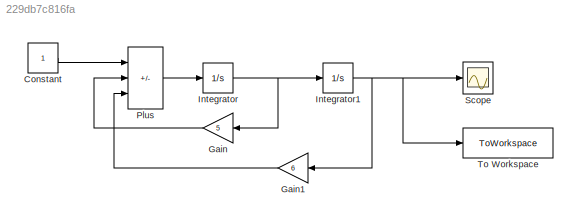
MODEL slx_229db7c816fa
KIND model
CONFIG AbsTol = auto
CONFIG EnableMultiTasking = off
CONFIG FixedStep = auto
CONFIG MaxStep = auto
CONFIG MinStep = auto
CONFIG RelTol = 1e-3
CONFIG SampleTimeConstraint = Unconstrained
CONFIG SolverName = VariableStepAuto
CONFIG StartTime = 0.0
CONFIG StopTime = 10.0
BLOCK [Constant] Constant
BLOCK [Gain] Gain
  Gain = 5
BLOCK [Gain] Gain1
  Gain = 6
BLOCK [Integrator] Integrator
BLOCK [Integrator] Integrator1
BLOCK [Sum] Plus
  IconShape = rectangular
  Inputs = +--
BLOCK [Scope] Scope
  Floating = off
  NumInputPorts = 1
  ScopeSpecificationString = Simulink.scopes.TimeScopeBlockCfg('CurrentConfiguration', extmgr.ConfigurationSet(extmgr.Configuration('Core','General UI',true),extmgr.Configuration('Core','Source UI',true),extmgr.Configuration('Sources','WiredSimulink',true),extmgr.Configuration('Visuals','Time Domain',true,'SerializedDisplays',{struct('MinYLimReal','-0.02083','MaxYLimReal','0.1875','YLabelReal','','MinYLimMag','0.00000','MaxYL...<+1327ch>
BLOCK [ToWorkspace] To Workspace
  FixptAsFi = on
  MaxDataPoints = inf
  SampleTime = -1
  SaveFormat = Timeseries
  VariableName = simout
LINE Constant:1 -> Plus:1
LINE Gain1:1 -> Plus:3
LINE Gain:1 -> Plus:2
NET Integrator1:1 -> Gain1:1, Scope:1, To Workspace:1
NET Integrator:1 -> Gain:1, Integrator1:1
LINE Plus:1 -> Integrator:1
note: NET lines group one-source signal fan-out (src -> all destinations, sorted); 1:1 wires keep LINE
